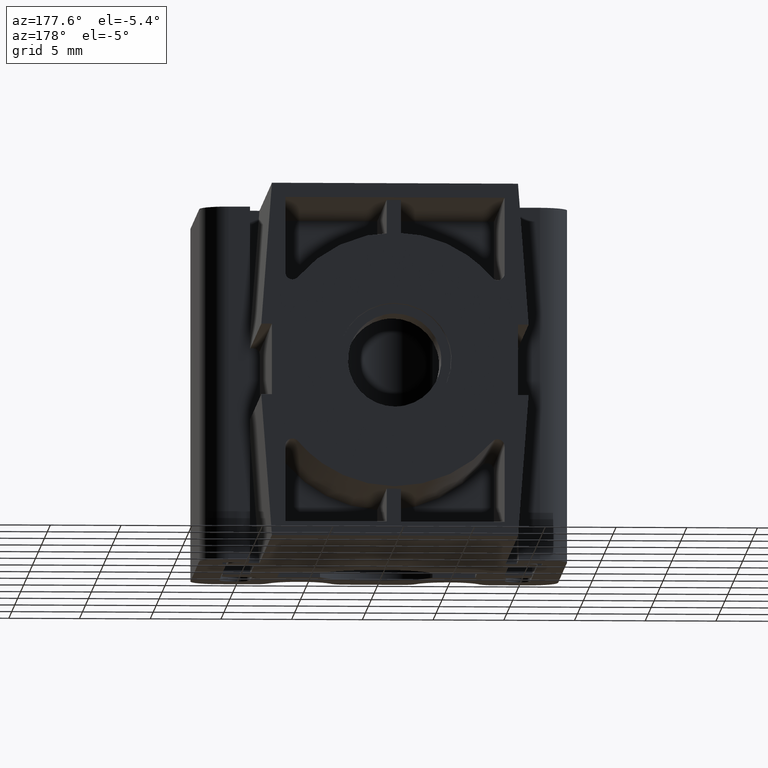
[diagram: clean part render]
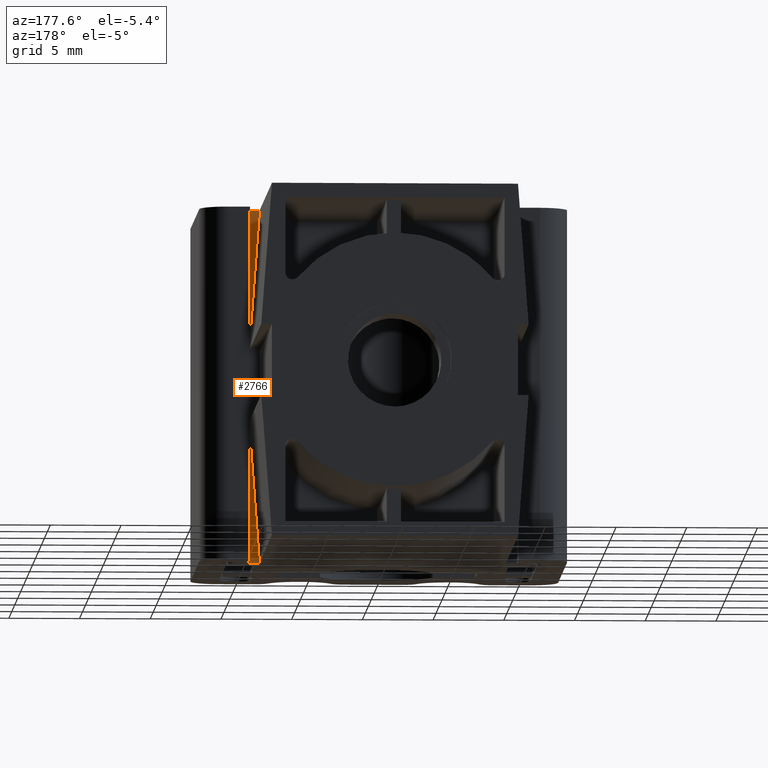
[diagram: same view with one face highlighted and labeled with its STEP entity id]
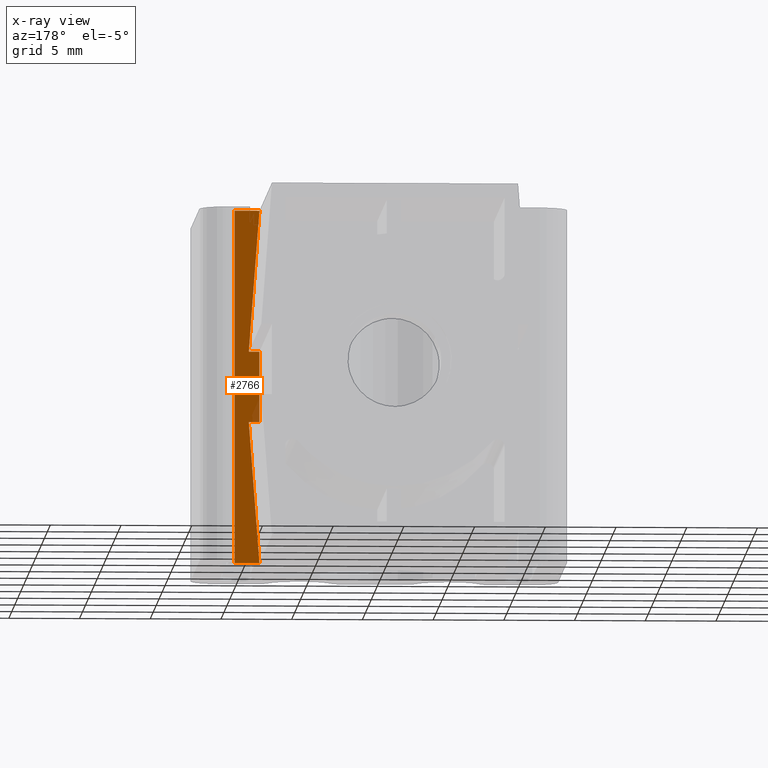
[diagram: x-ray of the same camera — body ghosted, the highlighted face saturated]
A machine part, auxiliary view. The second image highlights one B-rep face of the part: STEP entity #2766.
The next image is the same camera in x-ray: the body ghosted, the highlighted face saturated — about 2% of this face is hidden behind the body in this view.
In plain terms, the highlighted face is a freeform B-spline surface patch.
Its self-contained STEP definition (entity closure, byte-faithful):
#1643=CARTESIAN_POINT('',(9.450000448850910,8.900000422727320,2.500000118743600));
#1644=VERTEX_POINT('',#1643);
#1645=CARTESIAN_POINT('',(8.700000413227830,8.900000422727320,12.500000593718100));
#1646=VERTEX_POINT('',#1645);
#1647=CARTESIAN_POINT('',(9.450000448850910,8.900000422727320,2.500000118743600));
#1648=CARTESIAN_POINT('',(8.700000413227830,8.900000422727320,12.500000593718100));
#1649=QUASI_UNIFORM_CURVE('',1,(#1647,#1648),.UNSPECIFIED.,.F.,.U.);
#1650=EDGE_CURVE('',#1644,#1646,#1649,.T.);
#1679=CARTESIAN_POINT('',(8.700000413227830,8.900000422727320,2.500000118743600));
#1680=VERTEX_POINT('',#1679);
#1681=CARTESIAN_POINT('',(8.700000413227830,8.900000422727320,2.500000118743600));
#1682=CARTESIAN_POINT('',(9.450000448850910,8.900000422727320,2.500000118743600));
#1683=QUASI_UNIFORM_CURVE('',1,(#1681,#1682),.UNSPECIFIED.,.F.,.U.);
#1684=EDGE_CURVE('',#1680,#1644,#1683,.T.);
#1707=CARTESIAN_POINT('',(8.700000413227830,8.900000422727320,-2.500000118743600));
#1708=VERTEX_POINT('',#1707);
#1709=CARTESIAN_POINT('',(8.700000413227830,8.900000422727320,-2.500000118743600));
#1710=CARTESIAN_POINT('',(8.700000413227830,8.900000422727320,2.500000118743600));
#1711=QUASI_UNIFORM_CURVE('',1,(#1709,#1710),.UNSPECIFIED.,.F.,.U.);
#1712=EDGE_CURVE('',#1708,#1680,#1711,.T.);
#1735=CARTESIAN_POINT('',(9.450000448850910,8.900000422727320,-2.500000118743600));
#1736=VERTEX_POINT('',#1735);
#1737=CARTESIAN_POINT('',(9.450000448850910,8.900000422727320,-2.500000118743600));
#1738=CARTESIAN_POINT('',(8.700000413227830,8.900000422727320,-2.500000118743600));
#1739=QUASI_UNIFORM_CURVE('',1,(#1737,#1738),.UNSPECIFIED.,.F.,.U.);
#1740=EDGE_CURVE('',#1736,#1708,#1739,.T.);
#1763=CARTESIAN_POINT('',(8.700000413227830,8.900000422727320,-12.500001187436879));
#1764=VERTEX_POINT('',#1763);
#1765=CARTESIAN_POINT('',(8.700000413227830,8.900000422727320,-12.500001187436879));
#1766=CARTESIAN_POINT('',(9.450000448850910,8.900000422727320,-2.500000118743600));
#1767=QUASI_UNIFORM_CURVE('',1,(#1765,#1766),.UNSPECIFIED.,.F.,.U.);
#1768=EDGE_CURVE('',#1764,#1736,#1767,.T.);
#1941=CARTESIAN_POINT('',(10.450000496348400,8.900000422727320,-12.500001187436879));
#1942=VERTEX_POINT('',#1941);
#2142=CARTESIAN_POINT('',(8.700000413227830,8.900000422727320,-12.500001187436879));
#2143=CARTESIAN_POINT('',(10.450000496348400,8.900000422727320,-12.500001187436879));
#2144=QUASI_UNIFORM_CURVE('',1,(#2142,#2143),.UNSPECIFIED.,.F.,.U.);
#2145=EDGE_CURVE('',#1764,#1942,#2144,.T.);
#2157=CARTESIAN_POINT('',(10.450000496348400,8.900000422727320,12.500000000000000));
#2158=VERTEX_POINT('',#2157);
#2172=CARTESIAN_POINT('',(8.700000413227830,8.900000422727320,12.500000593718100));
#2173=CARTESIAN_POINT('',(10.450000496348400,8.900000422727320,12.500000000000000));
#2174=QUASI_UNIFORM_CURVE('',1,(#2172,#2173),.UNSPECIFIED.,.F.,.U.);
#2175=EDGE_CURVE('',#1646,#2158,#2174,.T.);
#2747=CARTESIAN_POINT('',(8.612588261373809,8.900000422727320,-13.748750993268590));
#2748=CARTESIAN_POINT('',(8.612588261373809,8.900000422727320,13.748751293619540));
#2749=CARTESIAN_POINT('',(10.537413289697440,8.900000422727320,-13.748750993268590));
#2750=CARTESIAN_POINT('',(10.537413289697440,8.900000422727320,13.748751293619540));
#2751=B_SPLINE_SURFACE_WITH_KNOTS('',1,1,((#2747,#2749),(#2748,#2750)),.UNSPECIFIED.,.F.,.F.,.U.,(2,2),(2,2),(0.0,27.497502286888128),(0.0,1.924825028323632),.UNSPECIFIED.);
#2752=ORIENTED_EDGE('',*,*,#1768,.T.);
#2753=ORIENTED_EDGE('',*,*,#1740,.T.);
#2754=ORIENTED_EDGE('',*,*,#1712,.T.);
#2755=ORIENTED_EDGE('',*,*,#1684,.T.);
#2756=ORIENTED_EDGE('',*,*,#1650,.T.);
#2757=ORIENTED_EDGE('',*,*,#2175,.T.);
#2758=CARTESIAN_POINT('',(10.450000496348400,8.900000422727320,12.500000000000000));
#2759=CARTESIAN_POINT('',(10.450000496348400,8.900000422727320,-12.500001187436879));
#2760=QUASI_UNIFORM_CURVE('',1,(#2758,#2759),.UNSPECIFIED.,.F.,.U.);
#2761=EDGE_CURVE('',#2158,#1942,#2760,.T.);
#2762=ORIENTED_EDGE('',*,*,#2761,.T.);
#2763=ORIENTED_EDGE('',*,*,#2145,.F.);
#2764=EDGE_LOOP('',(#2752,#2753,#2754,#2755,#2756,#2757,#2762,#2763));
#2765=FACE_OUTER_BOUND('',#2764,.T.);
#2766=ADVANCED_FACE('',(#2765),#2751,.T.);